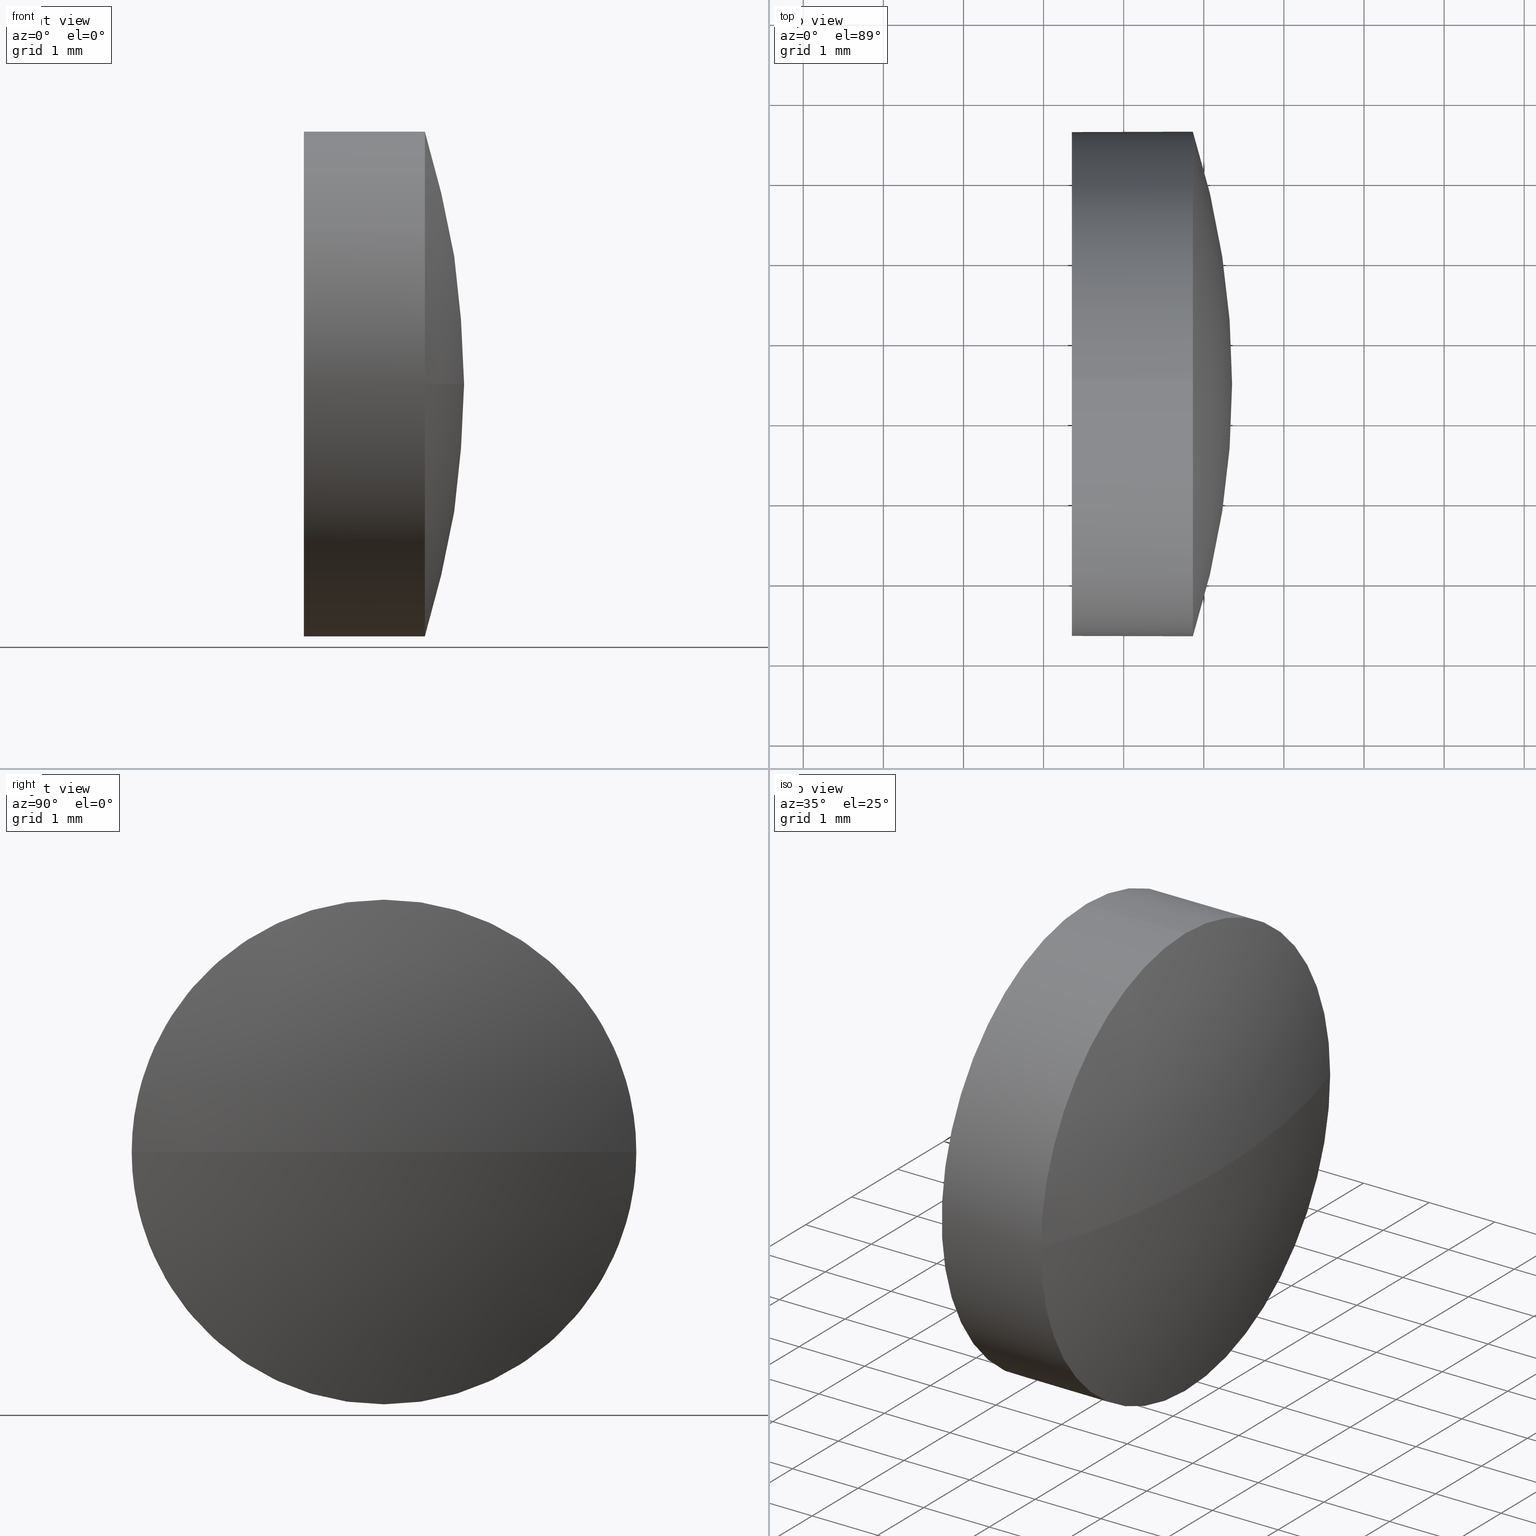
[diagram: canonical four-view strip — front | top / right | iso, engineering-drawing reading convention]
A machine part, canonical four-view strip (front | top / right | iso — engineering-drawing reading convention). The complete STEP part file that produces these views, byte-faithful:
ISO-10303-21;
HEADER;
FILE_DESCRIPTION (( 'STEP AP214' ),
    '1' );
FILE_NAME ('100096.STEP',
    '2019-05-13T05:50:33',
    ( '' ),
    ( '' ),
    'SwSTEP 2.0',
    'SolidWorks 2016',
    '' );
FILE_SCHEMA (( 'AUTOMOTIVE_DESIGN' ));
ENDSEC;

DATA;
#1 = ORIENTED_EDGE ( 'NONE', *, *, #22, .F. ) ;
#2 = LINE ( 'NONE', #28, #93 ) ;
#3 = STYLED_ITEM ( 'NONE', ( #126 ), #94 ) ;
#4 = DIRECTION ( 'NONE',  ( 0.0000000000000000000, 0.0000000000000000000, 1.000000000000000000 ) ) ;
#5 = DIRECTION ( 'NONE',  ( -1.000000000000000000, -0.0000000000000000000, -0.0000000000000000000 ) ) ;
#6 = ADVANCED_FACE ( 'NONE', ( #99 ), #65, .T. ) ;
#7 = VERTEX_POINT ( 'NONE', #164 ) ;
#8 =( NAMED_UNIT ( * ) PLANE_ANGLE_UNIT ( ) SI_UNIT ( $, .RADIAN. ) );
#9 = CARTESIAN_POINT ( 'NONE',  ( 555.9834668315506900, 45.46463200526834900, 0.0000000000000000000 ) ) ;
#10 = VERTEX_POINT ( 'NONE', #106 ) ;
#11 =( GEOMETRIC_REPRESENTATION_CONTEXT ( 3 ) GLOBAL_UNCERTAINTY_ASSIGNED_CONTEXT ( ( #128 ) ) GLOBAL_UNIT_ASSIGNED_CONTEXT ( ( #19, #125, #50 ) ) REPRESENTATION_CONTEXT ( 'NONE', 'WORKASPACE' ) );
#12 = CYLINDRICAL_SURFACE ( 'NONE', #23, 3.149999999999999900 ) ;
#13 = EDGE_CURVE ( 'NONE', #172, #152, #20, .T. ) ;
#14 = SURFACE_STYLE_FILL_AREA ( #113 ) ;
#15 = ORIENTED_EDGE ( 'NONE', *, *, #56, .T. ) ;
#16 = EDGE_CURVE ( 'NONE', #152, #10, #173, .T. ) ;
#17 = ORIENTED_EDGE ( 'NONE', *, *, #60, .T. ) ;
#18 = DIRECTION ( 'NONE',  ( -1.000000000000000000, 0.0000000000000000000, 0.0000000000000000000 ) ) ;
#19 =( LENGTH_UNIT ( ) NAMED_UNIT ( * ) SI_UNIT ( .MILLI., .METRE. ) );
#20 = LINE ( 'NONE', #78, #95 ) ;
#21 = AXIS2_PLACEMENT_3D ( 'NONE', #31, #66, #18 ) ;
#22 = EDGE_CURVE ( 'NONE', #179, #72, #168, .T. ) ;
#23 = AXIS2_PLACEMENT_3D ( 'NONE', #104, #153, #107 ) ;
#24 = CIRCLE ( 'NONE', #118, 3.149999999999999900 ) ;
#25 = ORIENTED_EDGE ( 'NONE', *, *, #60, .F. ) ;
#26 = ORIENTED_EDGE ( 'NONE', *, *, #56, .F. ) ;
#27 = DIRECTION ( 'NONE',  ( 0.0000000000000000000, -1.000000000000000000, 0.0000000000000000000 ) ) ;
#28 = CARTESIAN_POINT ( 'NONE',  ( 563.4918386619660900, 45.46463200526830000, -3.149999999999999900 ) ) ;
#29 = DIRECTION ( 'NONE',  ( -1.000000000000000000, -0.0000000000000000000, -0.0000000000000000000 ) ) ;
#30 = MECHANICAL_DESIGN_GEOMETRIC_PRESENTATION_REPRESENTATION (  '', ( #140 ), #120 ) ;
#31 = CARTESIAN_POINT ( 'NONE',  ( 555.9834668315506900, 45.46463200526834900, 0.0000000000000000000 ) ) ;
#32 = AXIS2_PLACEMENT_3D ( 'NONE', #9, #91, #108 ) ;
#33 = SURFACE_STYLE_FILL_AREA ( #109 ) ;
#34 = CARTESIAN_POINT ( 'NONE',  ( 565.8634668315505700, 48.61463200526829800, 3.857637417314100600E-016 ) ) ;
#35 = SURFACE_STYLE_USAGE ( .BOTH. , #166 ) ;
#36 = ADVANCED_FACE ( 'NONE', ( #139 ), #63, .F. ) ;
#37 = SPHERICAL_SURFACE ( 'NONE', #32, 10.36999999999988000 ) ;
#38 = ORIENTED_EDGE ( 'NONE', *, *, #49, .T. ) ;
#39 = CIRCLE ( 'NONE', #144, 3.149999999999999900 ) ;
#40 = PRESENTATION_LAYER_ASSIGNMENT (  '', '', ( #3 ) ) ;
#41 = SHAPE_DEFINITION_REPRESENTATION ( #130, #58 ) ;
#42 = EDGE_CURVE ( 'NONE', #7, #172, #39, .T. ) ;
#43 = CARTESIAN_POINT ( 'NONE',  ( 565.8634668315505700, 45.46463200526830000, 0.0000000000000000000 ) ) ;
#44 = DIRECTION ( 'NONE',  ( 0.0000000000000000000, -1.224646799147353200E-016, 1.000000000000000000 ) ) ;
#45 = ORIENTED_EDGE ( 'NONE', *, *, #16, .T. ) ;
#46 = CARTESIAN_POINT ( 'NONE',  ( 565.8634668315505700, 45.46463200526830000, 0.0000000000000000000 ) ) ;
#47 = DIRECTION ( 'NONE',  ( 0.0000000000000000000, 0.0000000000000000000, 1.000000000000000000 ) ) ;
#48 = ADVANCED_FACE ( 'NONE', ( #57 ), #12, .T. ) ;
#49 = EDGE_CURVE ( 'NONE', #72, #183, #97, .T. ) ;
#50 =( NAMED_UNIT ( * ) SI_UNIT ( $, .STERADIAN. ) SOLID_ANGLE_UNIT ( ) );
#51 = PRODUCT_DEFINITION ( 'δ֪', '', #64, #61 ) ;
#52 = CIRCLE ( 'NONE', #176, 3.149999999999999900 ) ;
#53 = DIRECTION ( 'NONE',  ( -1.000000000000000000, -0.0000000000000000000, -0.0000000000000000000 ) ) ;
#54 = AXIS2_PLACEMENT_3D ( 'NONE', #124, #80, #82 ) ;
#55 = CARTESIAN_POINT ( 'NONE',  ( 564.3534668315505800, 45.46463200526830000, 0.0000000000000000000 ) ) ;
#56 = EDGE_CURVE ( 'NONE', #172, #72, #52, .T. ) ;
#57 = FACE_OUTER_BOUND ( 'NONE', #154, .T. ) ;
#58 = ADVANCED_BREP_SHAPE_REPRESENTATION ( '100096', ( #94, #88 ), #11 ) ;
#59 = PRESENTATION_STYLE_ASSIGNMENT (( #70 ) ) ;
#60 = EDGE_CURVE ( 'NONE', #183, #10, #2, .T. ) ;
#61 = PRODUCT_DEFINITION_CONTEXT ( 'detailed design', #117, 'design' ) ;
#62 = ORIENTED_EDGE ( 'NONE', *, *, #133, .T. ) ;
#63 = PLANE ( 'NONE',  #160 ) ;
#64 = PRODUCT_DEFINITION_FORMATION_WITH_SPECIFIED_SOURCE ( '�κ�', '', #155, .NOT_KNOWN. ) ;
#65 = SPHERICAL_SURFACE ( 'NONE', #100, 10.36999999999988000 ) ;
#66 = DIRECTION ( 'NONE',  ( 0.0000000000000000000, 0.0000000000000000000, -1.000000000000000000 ) ) ;
#67 =( NAMED_UNIT ( * ) SI_UNIT ( $, .STERADIAN. ) SOLID_ANGLE_UNIT ( ) );
#68 = PRODUCT_RELATED_PRODUCT_CATEGORY ( 'part', '', ( #155 ) ) ;
#69 = ORIENTED_EDGE ( 'NONE', *, *, #13, .F. ) ;
#70 = SURFACE_STYLE_USAGE ( .BOTH. , #145 ) ;
#71 = UNCERTAINTY_MEASURE_WITH_UNIT (LENGTH_MEASURE( 1.000000000000000100E-005 ), #92, 'distance_accuracy_value', 'NONE');
#72 = VERTEX_POINT ( 'NONE', #34 ) ;
#73 = AXIS2_PLACEMENT_3D ( 'NONE', #163, #79, #103 ) ;
#74 = FACE_OUTER_BOUND ( 'NONE', #161, .T. ) ;
#75 = FACE_OUTER_BOUND ( 'NONE', #115, .T. ) ;
#76 = PRESENTATION_LAYER_ASSIGNMENT (  '', '', ( #140 ) ) ;
#77 = ORIENTED_EDGE ( 'NONE', *, *, #185, .F. ) ;
#78 = CARTESIAN_POINT ( 'NONE',  ( 563.4918386619660900, 45.46463200526830000, 3.149999999999999900 ) ) ;
#79 = DIRECTION ( 'NONE',  ( -1.000000000000000000, -0.0000000000000000000, -0.0000000000000000000 ) ) ;
#80 = DIRECTION ( 'NONE',  ( -1.000000000000000000, -0.0000000000000000000, -0.0000000000000000000 ) ) ;
#81 = ORIENTED_EDGE ( 'NONE', *, *, #133, .F. ) ;
#82 = DIRECTION ( 'NONE',  ( 0.0000000000000000000, 0.0000000000000000000, 1.000000000000000000 ) ) ;
#83 = CARTESIAN_POINT ( 'NONE',  ( 565.8634668315505700, 45.46463200526830000, -3.149999999999999900 ) ) ;
#84 = DIRECTION ( 'NONE',  ( -1.000000000000000000, -0.0000000000000000000, -0.0000000000000000000 ) ) ;
#85 = APPLICATION_PROTOCOL_DEFINITION ( 'draft international standard', 'automotive_design', 1998, #182 ) ;
#86 = FILL_AREA_STYLE_COLOUR ( '', #90 ) ;
#87 = ORIENTED_EDGE ( 'NONE', *, *, #49, .F. ) ;
#88 = AXIS2_PLACEMENT_3D ( 'NONE', #141, #96, #116 ) ;
#89 = CIRCLE ( 'NONE', #186, 3.149999999999999900 ) ;
#90 = COLOUR_RGB ( '',1.000000000000000000, 1.000000000000000000, 1.000000000000000000 ) ;
#91 = DIRECTION ( 'NONE',  ( 0.0000000000000000000, 0.0000000000000000000, 1.000000000000000000 ) ) ;
#92 =( LENGTH_UNIT ( ) NAMED_UNIT ( * ) SI_UNIT ( .MILLI., .METRE. ) );
#93 = VECTOR ( 'NONE', #29, 1000.000000000000000 ) ;
#94 = MANIFOLD_SOLID_BREP ( '��ת1', #149 ) ;
#95 = VECTOR ( 'NONE', #5, 1000.000000000000000 ) ;
#96 = DIRECTION ( 'NONE',  ( 0.0000000000000000000, 0.0000000000000000000, 1.000000000000000000 ) ) ;
#97 = CIRCLE ( 'NONE', #169, 3.149999999999999900 ) ;
#98 = MECHANICAL_DESIGN_GEOMETRIC_PRESENTATION_REPRESENTATION (  '', ( #3 ), #101 ) ;
#99 = FACE_OUTER_BOUND ( 'NONE', #102, .T. ) ;
#100 = AXIS2_PLACEMENT_3D ( 'NONE', #175, #4, #27 ) ;
#101 =( GEOMETRIC_REPRESENTATION_CONTEXT ( 3 ) GLOBAL_UNCERTAINTY_ASSIGNED_CONTEXT ( ( #71 ) ) GLOBAL_UNIT_ASSIGNED_CONTEXT ( ( #92, #8, #67 ) ) REPRESENTATION_CONTEXT ( 'NONE', 'WORKASPACE' ) );
#102 = EDGE_LOOP ( 'NONE', ( #1, #62, #77, #87 ) ) ;
#103 = DIRECTION ( 'NONE',  ( 0.0000000000000000000, 0.0000000000000000000, 1.000000000000000000 ) ) ;
#104 = CARTESIAN_POINT ( 'NONE',  ( 563.4918386619660900, 45.46463200526830000, 0.0000000000000000000 ) ) ;
#105 = ORIENTED_EDGE ( 'NONE', *, *, #13, .T. ) ;
#106 = CARTESIAN_POINT ( 'NONE',  ( 564.3534668315505800, 45.46463200526830000, -3.149999999999999900 ) ) ;
#107 = DIRECTION ( 'NONE',  ( 0.0000000000000000000, 0.0000000000000000000, 1.000000000000000000 ) ) ;
#108 = DIRECTION ( 'NONE',  ( 0.0000000000000000000, -1.000000000000000000, 0.0000000000000000000 ) ) ;
#109 = FILL_AREA_STYLE ('',( #178 ) ) ;
#110 = DIRECTION ( 'NONE',  ( -1.000000000000000000, -0.0000000000000000000, -0.0000000000000000000 ) ) ;
#111 =( LENGTH_UNIT ( ) NAMED_UNIT ( * ) SI_UNIT ( .MILLI., .METRE. ) );
#112 = AXIS2_PLACEMENT_3D ( 'NONE', #134, #44, #135 ) ;
#113 = FILL_AREA_STYLE ('',( #86 ) ) ;
#114 = CIRCLE ( 'NONE', #21, 10.36999999999988000 ) ;
#115 = EDGE_LOOP ( 'NONE', ( #25, #143, #158, #105, #150 ) ) ;
#116 = DIRECTION ( 'NONE',  ( 1.000000000000000000, 0.0000000000000000000, 0.0000000000000000000 ) ) ;
#117 = APPLICATION_CONTEXT ( 'automotive_design' ) ;
#118 = AXIS2_PLACEMENT_3D ( 'NONE', #55, #53, #142 ) ;
#119 = DIRECTION ( 'NONE',  ( 0.0000000000000000000, 0.0000000000000000000, -1.000000000000000000 ) ) ;
#120 =( GEOMETRIC_REPRESENTATION_CONTEXT ( 3 ) GLOBAL_UNCERTAINTY_ASSIGNED_CONTEXT ( ( #151 ) ) GLOBAL_UNIT_ASSIGNED_CONTEXT ( ( #111, #170, #181 ) ) REPRESENTATION_CONTEXT ( 'NONE', 'WORKASPACE' ) );
#121 = ORIENTED_EDGE ( 'NONE', *, *, #42, .F. ) ;
#122 = CARTESIAN_POINT ( 'NONE',  ( 565.8634668315505700, 45.46463200526830000, 0.0000000000000000000 ) ) ;
#123 = ADVANCED_FACE ( 'NONE', ( #75 ), #157, .T. ) ;
#124 = CARTESIAN_POINT ( 'NONE',  ( 563.4918386619660900, 45.46463200526830000, 0.0000000000000000000 ) ) ;
#125 =( NAMED_UNIT ( * ) PLANE_ANGLE_UNIT ( ) SI_UNIT ( $, .RADIAN. ) );
#126 = PRESENTATION_STYLE_ASSIGNMENT (( #35 ) ) ;
#127 = PRODUCT_CONTEXT ( 'NONE', #182, 'mechanical' ) ;
#128 = UNCERTAINTY_MEASURE_WITH_UNIT (LENGTH_MEASURE( 1.000000000000000100E-005 ), #19, 'distance_accuracy_value', 'NONE');
#129 = COLOUR_RGB ( '',1.000000000000000000, 1.000000000000000000, 1.000000000000000000 ) ;
#130 = PRODUCT_DEFINITION_SHAPE ( 'NONE', 'NONE',  #51 ) ;
#131 = ORIENTED_EDGE ( 'NONE', *, *, #22, .T. ) ;
#132 = DIRECTION ( 'NONE',  ( -1.000000000000000000, -0.0000000000000000000, -0.0000000000000000000 ) ) ;
#133 = EDGE_CURVE ( 'NONE', #179, #7, #114, .T. ) ;
#134 = CARTESIAN_POINT ( 'NONE',  ( 555.9834668315506900, 45.46463200526834900, 0.0000000000000000000 ) ) ;
#135 = DIRECTION ( 'NONE',  ( 0.0000000000000000000, -1.000000000000000000, -1.224646799147353200E-016 ) ) ;
#136 = ORIENTED_EDGE ( 'NONE', *, *, #16, .F. ) ;
#137 = ADVANCED_FACE ( 'NONE', ( #74 ), #37, .T. ) ;
#138 = DIRECTION ( 'NONE',  ( -1.000000000000000000, -0.0000000000000000000, -0.0000000000000000000 ) ) ;
#139 = FACE_OUTER_BOUND ( 'NONE', #147, .T. ) ;
#140 = STYLED_ITEM ( 'NONE', ( #59 ), #58 ) ;
#141 = CARTESIAN_POINT ( 'NONE',  ( 0.0000000000000000000, 0.0000000000000000000, 0.0000000000000000000 ) ) ;
#142 = DIRECTION ( 'NONE',  ( 0.0000000000000000000, 0.0000000000000000000, 1.000000000000000000 ) ) ;
#143 = ORIENTED_EDGE ( 'NONE', *, *, #185, .T. ) ;
#144 = AXIS2_PLACEMENT_3D ( 'NONE', #43, #132, #162 ) ;
#145 = SURFACE_SIDE_STYLE ('',( #14 ) ) ;
#146 = CARTESIAN_POINT ( 'NONE',  ( 565.8634668315505700, 45.46463200526830000, 3.149999999999999900 ) ) ;
#147 = EDGE_LOOP ( 'NONE', ( #45, #171 ) ) ;
#148 = EDGE_CURVE ( 'NONE', #10, #152, #24, .T. ) ;
#149 = CLOSED_SHELL ( 'NONE', ( #48, #137, #6, #123, #36 ) ) ;
#150 = ORIENTED_EDGE ( 'NONE', *, *, #148, .F. ) ;
#151 = UNCERTAINTY_MEASURE_WITH_UNIT (LENGTH_MEASURE( 1.000000000000000100E-005 ), #111, 'distance_accuracy_value', 'NONE');
#152 = VERTEX_POINT ( 'NONE', #167 ) ;
#153 = DIRECTION ( 'NONE',  ( -1.000000000000000000, -0.0000000000000000000, -0.0000000000000000000 ) ) ;
#154 = EDGE_LOOP ( 'NONE', ( #38, #17, #136, #69, #15 ) ) ;
#155 = PRODUCT ( '100096', '100096', '', ( #127 ) ) ;
#156 = DIRECTION ( 'NONE',  ( 0.0000000000000000000, 0.0000000000000000000, 1.000000000000000000 ) ) ;
#157 = CYLINDRICAL_SURFACE ( 'NONE', #54, 3.149999999999999900 ) ;
#158 = ORIENTED_EDGE ( 'NONE', *, *, #42, .T. ) ;
#159 = CARTESIAN_POINT ( 'NONE',  ( 565.8634668315505700, 45.46463200526830000, 0.0000000000000000000 ) ) ;
#160 = AXIS2_PLACEMENT_3D ( 'NONE', #165, #174, #119 ) ;
#161 = EDGE_LOOP ( 'NONE', ( #81, #131, #26, #121 ) ) ;
#162 = DIRECTION ( 'NONE',  ( 0.0000000000000000000, 0.0000000000000000000, 1.000000000000000000 ) ) ;
#163 = CARTESIAN_POINT ( 'NONE',  ( 564.3534668315505800, 45.46463200526830000, 0.0000000000000000000 ) ) ;
#164 = CARTESIAN_POINT ( 'NONE',  ( 565.8634668315505700, 42.31463200526834400, 0.0000000000000000000 ) ) ;
#165 = CARTESIAN_POINT ( 'NONE',  ( 564.3534668315505800, 45.46463200526830000, 0.0000000000000000000 ) ) ;
#166 = SURFACE_SIDE_STYLE ('',( #33 ) ) ;
#167 = CARTESIAN_POINT ( 'NONE',  ( 564.3534668315505800, 45.46463200526830000, 3.149999999999999900 ) ) ;
#168 = CIRCLE ( 'NONE', #112, 10.36999999999988000 ) ;
#169 = AXIS2_PLACEMENT_3D ( 'NONE', #122, #84, #177 ) ;
#170 =( NAMED_UNIT ( * ) PLANE_ANGLE_UNIT ( ) SI_UNIT ( $, .RADIAN. ) );
#171 = ORIENTED_EDGE ( 'NONE', *, *, #148, .T. ) ;
#172 = VERTEX_POINT ( 'NONE', #146 ) ;
#173 = CIRCLE ( 'NONE', #73, 3.149999999999999900 ) ;
#174 = DIRECTION ( 'NONE',  ( 1.000000000000000000, 0.0000000000000000000, 0.0000000000000000000 ) ) ;
#175 = CARTESIAN_POINT ( 'NONE',  ( 555.9834668315506900, 45.46463200526834900, 0.0000000000000000000 ) ) ;
#176 = AXIS2_PLACEMENT_3D ( 'NONE', #46, #138, #47 ) ;
#177 = DIRECTION ( 'NONE',  ( 0.0000000000000000000, 0.0000000000000000000, 1.000000000000000000 ) ) ;
#178 = FILL_AREA_STYLE_COLOUR ( '', #129 ) ;
#179 = VERTEX_POINT ( 'NONE', #180 ) ;
#180 = CARTESIAN_POINT ( 'NONE',  ( 566.3534668315505800, 45.46463200526834900, 0.0000000000000000000 ) ) ;
#181 =( NAMED_UNIT ( * ) SI_UNIT ( $, .STERADIAN. ) SOLID_ANGLE_UNIT ( ) );
#182 = APPLICATION_CONTEXT ( 'automotive_design' ) ;
#183 = VERTEX_POINT ( 'NONE', #83 ) ;
#184 = APPLICATION_PROTOCOL_DEFINITION ( 'draft international standard', 'automotive_design', 1998, #117 ) ;
#185 = EDGE_CURVE ( 'NONE', #183, #7, #89, .T. ) ;
#186 = AXIS2_PLACEMENT_3D ( 'NONE', #159, #110, #156 ) ;
ENDSEC;
END-ISO-10303-21;
